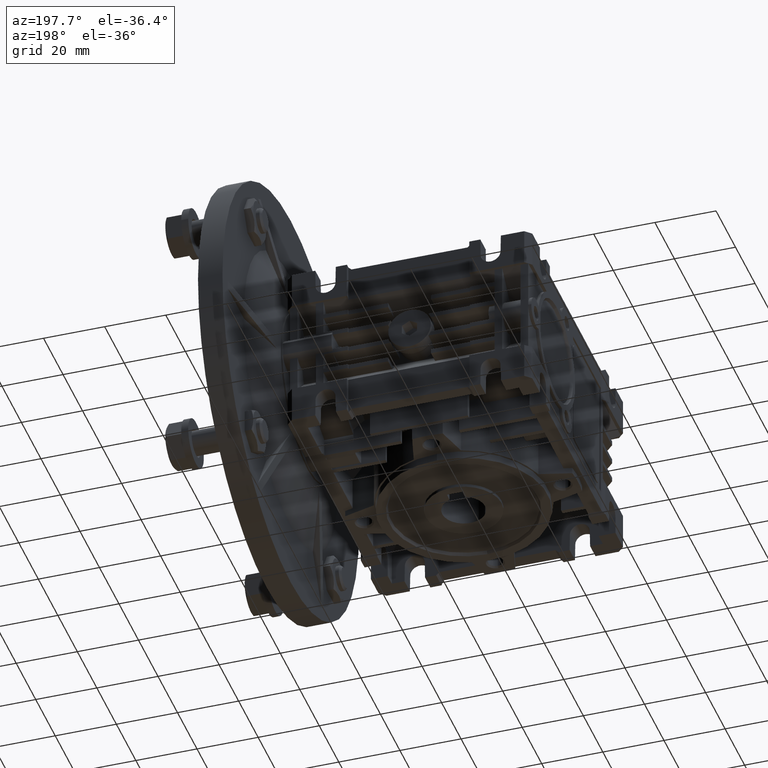
[diagram: clean part render]
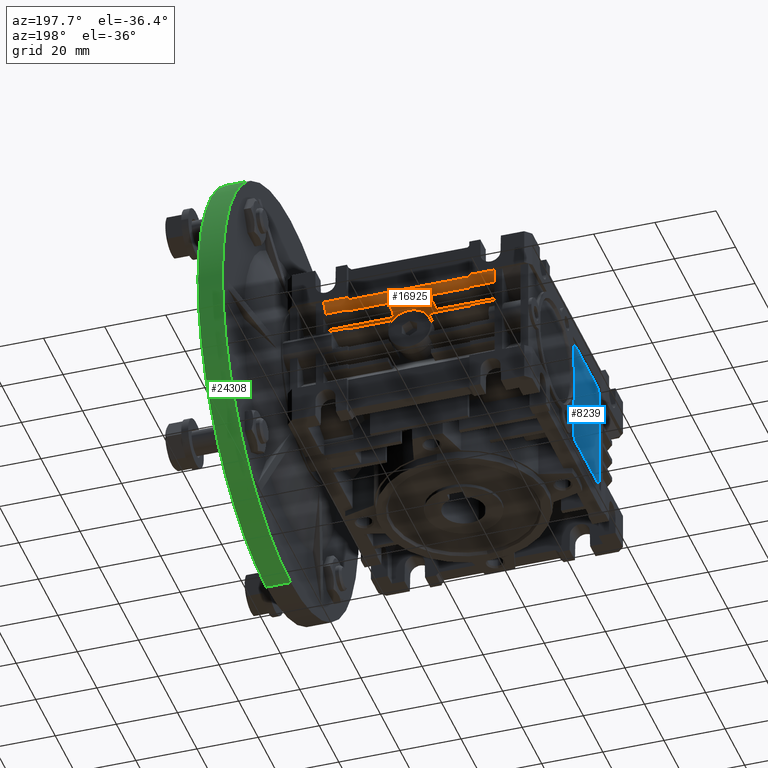
[diagram: same view with three faces highlighted in distinct colors, each labeled with its STEP entity id]
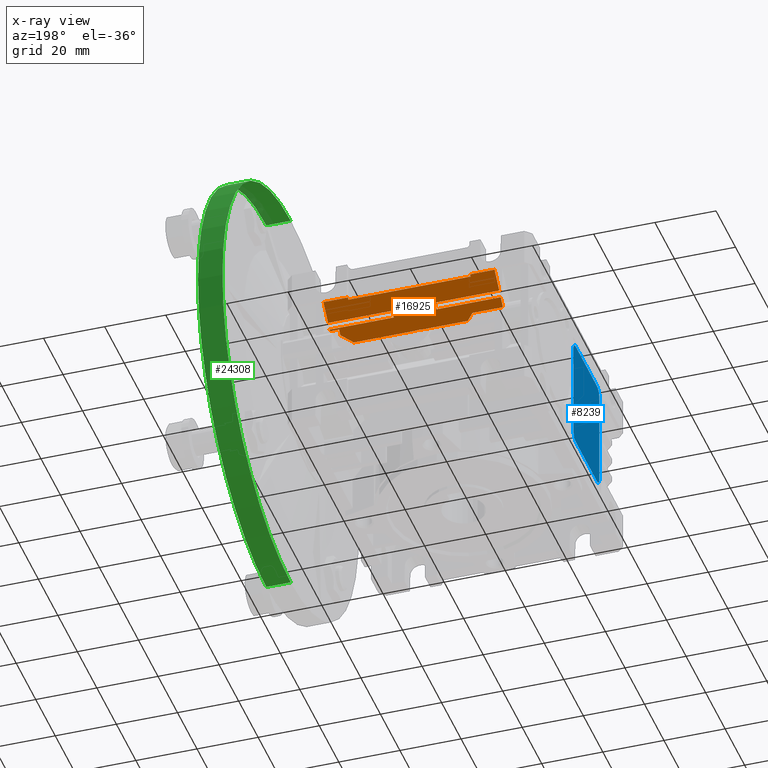
[diagram: x-ray of the same camera — body ghosted, the three highlighted faces saturated]
A machine part, auxiliary view with three faces highlighted in distinct colors.
The next image is the same camera in x-ray (body ghosted, the three faces saturated) — at least one of them is partly hidden behind the body in this view.
Their STEP definitions:

[orange] entity #16925 — the highlighted planar face has unit normal (0, -0.7071, 0.7071).
#39 = ORIENTED_EDGE ( 'NONE', *, *, #14391, .F. ) ;
#104 = CARTESIAN_POINT ( 'NONE',  ( -39.00000000000000000, 47.46996391333990317, 7.469963913339929817 ) ) ;
#209 = EDGE_CURVE ( 'NONE', #11871, #28544, #11088, .T. ) ;
#402 = VECTOR ( 'NONE', #22888, 1000.000000000000000 ) ;
#1157 = DIRECTION ( 'NONE',  ( 0.000000000000000000, 0.7071067811865480168, 0.7071067811865470176 ) ) ;
#1262 = EDGE_CURVE ( 'NONE', #28544, #24144, #30027, .T. ) ;
#1648 = CARTESIAN_POINT ( 'NONE',  ( 0.000000000000000000, 56.00000000000000000, 16.00000000000000000 ) ) ;
#2000 = CARTESIAN_POINT ( 'NONE',  ( -7.000000000000000000, 49.75000000000000000, 9.750000000000000000 ) ) ;
#2149 = EDGE_CURVE ( 'NONE', #30928, #23132, #22978, .T. ) ;
#2350 = ORIENTED_EDGE ( 'NONE', *, *, #1262, .F. ) ;
#2667 = VECTOR ( 'NONE', #6371, 1000.000000000000000 ) ;
#2937 = EDGE_CURVE ( 'NONE', #29669, #24183, #20636, .T. ) ;
#3090 = EDGE_CURVE ( 'NONE', #31614, #14803, #10053, .T. ) ;
#3310 = EDGE_CURVE ( 'NONE', #24183, #12698, #19015, .T. ) ;
#3506 = EDGE_CURVE ( 'NONE', #21051, #14185, #7147, .T. ) ;
#3522 = ORIENTED_EDGE ( 'NONE', *, *, #6237, .F. ) ;
#3692 = DIRECTION ( 'NONE',  ( 0.000000000000000000, 0.7071067811865480168, 0.7071067811865470176 ) ) ;
#3735 = VECTOR ( 'NONE', #7637, 1000.000000000000000 ) ;
#3982 = CARTESIAN_POINT ( 'NONE',  ( 7.000000000000000000, 51.25000000000000000, 11.25000000000000000 ) ) ;
#4085 = DIRECTION ( 'NONE',  ( 0.000000000000000000, 0.7071067811865474617, 0.7071067811865474617 ) ) ;
#4394 = VERTEX_POINT ( 'NONE', #28608 ) ;
#4639 = CARTESIAN_POINT ( 'NONE',  ( 28.00000000000000000, 56.00000000000000000, 16.00000000000000000 ) ) ;
#4919 = ORIENTED_EDGE ( 'NONE', *, *, #16233, .F. ) ;
#4937 = CARTESIAN_POINT ( 'NONE',  ( 22.51954799530127715, 46.64945855437098032, 6.649458554370993646 ) ) ;
#5625 = CARTESIAN_POINT ( 'NONE',  ( -17.99999999999998934, 47.46996391333991028, 7.469963913339932482 ) ) ;
#5695 = ORIENTED_EDGE ( 'NONE', *, *, #16977, .T. ) ;
#5720 = CARTESIAN_POINT ( 'NONE',  ( -28.00000000000000000, 47.46996391333990317, 7.469963913339929817 ) ) ;
#5935 = CARTESIAN_POINT ( 'NONE',  ( 21.28999999999997428, 45.93160555453771110, 5.931605554537727976 ) ) ;
#6237 = EDGE_CURVE ( 'NONE', #28973, #12698, #16117, .T. ) ;
#6278 = LINE ( 'NONE', #18777, #29329 ) ;
#6371 = DIRECTION ( 'NONE',  ( -1.000000000000000000, 0.000000000000000000, 0.000000000000000000 ) ) ;
#6549 = VECTOR ( 'NONE', #13691, 1000.000000000000000 ) ;
#6556 = CARTESIAN_POINT ( 'NONE',  ( -0.3025567477405109451, 45.99999999999998579, 6.000000000000001776 ) ) ;
#6689 = VECTOR ( 'NONE', #15392, 1000.000000000000000 ) ;
#6739 = VERTEX_POINT ( 'NONE', #10011 ) ;
#6777 = ORIENTED_EDGE ( 'NONE', *, *, #21748, .F. ) ;
#7147 = LINE ( 'NONE', #29851, #19126 ) ;
#7170 = VECTOR ( 'NONE', #4085, 1000.000000000000114 ) ;
#7533 = CARTESIAN_POINT ( 'NONE',  ( 23.75731417388607980, 47.36017117818274613, 7.360171178182755902 ) ) ;
#7635 = EDGE_CURVE ( 'NONE', #13912, #29905, #9746, .T. ) ;
#7637 = DIRECTION ( 'NONE',  ( 1.000000000000000000, 0.000000000000000000, 0.000000000000000000 ) ) ;
#7669 = CARTESIAN_POINT ( 'NONE',  ( 28.00000000000000000, 56.00000000000000000, 16.00000000000000000 ) ) ;
#7867 = CARTESIAN_POINT ( 'NONE',  ( 25.00000000000000000, 48.06660936176372445, 8.066609361763742214 ) ) ;
#7868 = ORIENTED_EDGE ( 'NONE', *, *, #19626, .F. ) ;
#7954 = VECTOR ( 'NONE', #14670, 1000.000000000000000 ) ;
#8417 = EDGE_CURVE ( 'NONE', #6739, #13912, #16035, .T. ) ;
#8458 = CARTESIAN_POINT ( 'NONE',  ( -28.00000000000000000, 49.75000000000000000, 9.750000000000000000 ) ) ;
#8628 = ORIENTED_EDGE ( 'NONE', *, *, #209, .F. ) ;
#8743 = VECTOR ( 'NONE', #31944, 1000.000000000000000 ) ;
#8777 = ORIENTED_EDGE ( 'NONE', *, *, #27083, .F. ) ;
#9535 = CARTESIAN_POINT ( 'NONE',  ( 20.00000000000000000, 56.00000000000000000, 16.00000000000000000 ) ) ;
#9546 = EDGE_CURVE ( 'NONE', #23712, #23428, #28208, .T. ) ;
#9746 = LINE ( 'NONE', #14474, #3735 ) ;
#10011 = CARTESIAN_POINT ( 'NONE',  ( 25.00000000000000000, 48.06660936176372445, 8.066609361763742214 ) ) ;
#10053 = LINE ( 'NONE', #32103, #8743 ) ;
#10521 = LINE ( 'NONE', #30481, #6689 ) ;
#10574 = CARTESIAN_POINT ( 'NONE',  ( -20.00000000000000000, 55.50000000000000000, 15.50000000000000000 ) ) ;
#10660 = ORIENTED_EDGE ( 'NONE', *, *, #30166, .F. ) ;
#10931 = LINE ( 'NONE', #20822, #6549 ) ;
#10981 = CARTESIAN_POINT ( 'NONE',  ( -7.000000000000000000, 56.00000000000000000, 16.00000000000000000 ) ) ;
#11088 = B_SPLINE_CURVE_WITH_KNOTS ( 'NONE', 3,
 ( #5625, #12947, #17957, #25740 ),
 .UNSPECIFIED., .F., .F.,
 ( 4, 4 ),
 ( 8.673617379884035472E-19, 0.002955180684863990132 ),
 .UNSPECIFIED. ) ;
#11271 = VECTOR ( 'NONE', #29071, 1000.000000000000000 ) ;
#11276 = VERTEX_POINT ( 'NONE', #19286 ) ;
#11797 = EDGE_CURVE ( 'NONE', #15636, #14568, #26046, .T. ) ;
#11871 = VERTEX_POINT ( 'NONE', #16314 ) ;
#12007 = ORIENTED_EDGE ( 'NONE', *, *, #9546, .F. ) ;
#12698 = VERTEX_POINT ( 'NONE', #9535 ) ;
#12778 = DIRECTION ( 'NONE',  ( 0.000000000000000000, -0.7071067811865480168, -0.7071067811865470176 ) ) ;
#12809 = LINE ( 'NONE', #104, #13452 ) ;
#12839 = VECTOR ( 'NONE', #12778, 1000.000000000000000 ) ;
#12947 = CARTESIAN_POINT ( 'NONE',  ( -17.32986343651985095, 46.95943337794270178, 6.959433377942715104 ) ) ;
#13110 = ORIENTED_EDGE ( 'NONE', *, *, #27116, .F. ) ;
#13452 = VECTOR ( 'NONE', #15055, 1000.000000000000000 ) ;
#13469 = CARTESIAN_POINT ( 'NONE',  ( -28.00000000000000000, 56.00000000000000000, 16.00000000000000000 ) ) ;
#13691 = DIRECTION ( 'NONE',  ( 0.000000000000000000, -0.7071067811865739960, -0.7071067811865210384 ) ) ;
#13879 = CARTESIAN_POINT ( 'NONE',  ( 0.000000000000000000, 45.99999999999998579, 6.000000000000000888 ) ) ;
#13912 = VERTEX_POINT ( 'NONE', #24177 ) ;
#14185 = VERTEX_POINT ( 'NONE', #3982 ) ;
#14391 = EDGE_CURVE ( 'NONE', #11276, #31614, #21450, .T. ) ;
#14474 = CARTESIAN_POINT ( 'NONE',  ( -39.00000000000000000, 49.35705401536119297, 9.357054015361219612 ) ) ;
#14566 = ORIENTED_EDGE ( 'NONE', *, *, #23391, .F. ) ;
#14568 = VERTEX_POINT ( 'NONE', #26142 ) ;
#14670 = DIRECTION ( 'NONE',  ( 1.000000000000000000, 0.000000000000000000, 0.000000000000000000 ) ) ;
#14803 = VERTEX_POINT ( 'NONE', #5935 ) ;
#14837 = ORIENTED_EDGE ( 'NONE', *, *, #28825, .F. ) ;
#15055 = DIRECTION ( 'NONE',  ( 1.000000000000000000, 0.000000000000000000, 0.000000000000000000 ) ) ;
#15107 = DIRECTION ( 'NONE',  ( 1.000000000000000000, 0.000000000000000000, 0.000000000000000000 ) ) ;
#15392 = DIRECTION ( 'NONE',  ( -1.000000000000000000, 0.000000000000000000, 0.000000000000000000 ) ) ;
#15405 = ORIENTED_EDGE ( 'NONE', *, *, #18727, .F. ) ;
#15437 = CARTESIAN_POINT ( 'NONE',  ( 0.3025567477405117778, 45.99999999999999289, 6.000000000000001776 ) ) ;
#15628 = CARTESIAN_POINT ( 'NONE',  ( -28.00000000000000000, 56.00000000000000000, 16.00000000000000000 ) ) ;
#15636 = VERTEX_POINT ( 'NONE', #25118 ) ;
#15715 = CARTESIAN_POINT ( 'NONE',  ( -39.00000000000000000, 56.00000000000000000, 16.00000000000000000 ) ) ;
#15785 = CARTESIAN_POINT ( 'NONE',  ( 7.000000000000000000, 56.00000000000000000, 16.00000000000000000 ) ) ;
#15987 = CARTESIAN_POINT ( 'NONE',  ( 7.000000000000000000, 49.75000000000000000, 9.750000000000000000 ) ) ;
#16035 = LINE ( 'NONE', #25930, #28674 ) ;
#16038 = FACE_OUTER_BOUND ( 'NONE', #31804, .T. ) ;
#16058 = B_SPLINE_CURVE_WITH_KNOTS ( 'NONE', 3,
 ( #19705, #4937, #7533, #7867 ),
 .UNSPECIFIED., .F., .F.,
 ( 4, 4 ),
 ( 1.430489624538199204E-17, 0.004783365187160523550 ),
 .UNSPECIFIED. ) ;
#16073 = ORIENTED_EDGE ( 'NONE', *, *, #2149, .F. ) ;
#16117 = LINE ( 'NONE', #1648, #2667 ) ;
#16233 = EDGE_CURVE ( 'NONE', #24144, #11276, #24745, .T. ) ;
#16314 = CARTESIAN_POINT ( 'NONE',  ( -17.99999999999998934, 47.46996391333991028, 7.469963913339932482 ) ) ;
#16545 = CARTESIAN_POINT ( 'NONE',  ( -28.00000000000000000, 56.00000000000000000, 16.00000000000000000 ) ) ;
#16602 = ORIENTED_EDGE ( 'NONE', *, *, #2937, .T. ) ;
#16776 = VECTOR ( 'NONE', #29311, 1000.000000000000000 ) ;
#16925 = ADVANCED_FACE ( 'NONE', ( #16038 ), #30643, .F. ) ;
#16977 = EDGE_CURVE ( 'NONE', #28973, #21051, #31749, .T. ) ;
#17061 = DIRECTION ( 'NONE',  ( -1.000000000000000000, 0.000000000000000000, 0.000000000000000000 ) ) ;
#17084 = CARTESIAN_POINT ( 'NONE',  ( -7.000000000000000000, 51.25000000000000000, 11.25000000000000000 ) ) ;
#17129 = CARTESIAN_POINT ( 'NONE',  ( -20.00000000000000000, 55.50000000000000000, 15.50000000000000000 ) ) ;
#17891 = LINE ( 'NONE', #15785, #30051 ) ;
#17957 = CARTESIAN_POINT ( 'NONE',  ( -16.66275208289628296, 46.44693632425067875, 6.446936324250690298 ) ) ;
#18146 = DIRECTION ( 'NONE',  ( -1.000000000000000000, 0.000000000000000000, 0.000000000000000000 ) ) ;
#18296 = DIRECTION ( 'NONE',  ( 0.000000000000000000, 0.7071067811865480168, 0.7071067811865470176 ) ) ;
#18327 = AXIS2_PLACEMENT_3D ( 'NONE', #15715, #30487, #18146 ) ;
#18470 = DIRECTION ( 'NONE',  ( 0.000000000000000000, -0.7071067811865480168, -0.7071067811865470176 ) ) ;
#18727 = EDGE_CURVE ( 'NONE', #14803, #6739, #16058, .T. ) ;
#18777 = CARTESIAN_POINT ( 'NONE',  ( -20.00000000000000000, 56.00000000000000000, 16.00000000000000000 ) ) ;
#19015 = LINE ( 'NONE', #26332, #7170 ) ;
#19126 = VECTOR ( 'NONE', #17061, 1000.000000000000000 ) ;
#19187 = ORIENTED_EDGE ( 'NONE', *, *, #11797, .T. ) ;
#19286 = CARTESIAN_POINT ( 'NONE',  ( 0.000000000000000000, 45.99999999999998579, 6.000000000000000888 ) ) ;
#19525 = CARTESIAN_POINT ( 'NONE',  ( -39.00000000000000000, 51.25000000000000000, 11.25000000000000000 ) ) ;
#19563 = CARTESIAN_POINT ( 'NONE',  ( 28.00000000000000000, 51.25000000000000000, 11.25000000000000000 ) ) ;
#19626 = EDGE_CURVE ( 'NONE', #29669, #20890, #6278, .T. ) ;
#19705 = CARTESIAN_POINT ( 'NONE',  ( 21.28999999999997428, 45.93160555453771110, 5.931605554537727976 ) ) ;
#20006 = LINE ( 'NONE', #19525, #7954 ) ;
#20636 = LINE ( 'NONE', #10574, #402 ) ;
#20793 = CARTESIAN_POINT ( 'NONE',  ( 0.000000000000000000, 45.99999999999998579, 6.000000000000000888 ) ) ;
#20822 = CARTESIAN_POINT ( 'NONE',  ( 28.00000000000000000, 49.75000000000000000, 9.750000000000000000 ) ) ;
#20890 = VERTEX_POINT ( 'NONE', #25813 ) ;
#21051 = VERTEX_POINT ( 'NONE', #19563 ) ;
#21450 =( BOUNDED_CURVE ( )  B_SPLINE_CURVE ( 3, ( #20793, #15437, #25334, #30193 ),
 .UNSPECIFIED., .F., .F. ) 
 B_SPLINE_CURVE_WITH_KNOTS ( ( 4, 4 ),
 ( 0.000000000000000000, 0.1511343561108894895 ),
 .UNSPECIFIED. ) 
 CURVE ( )  GEOMETRIC_REPRESENTATION_ITEM ( )  RATIONAL_B_SPLINE_CURVE ( ( 1.000000000000000000, 0.9980974394903445734, 0.9980974394903445734, 1.000000000000000000 ) ) 
 REPRESENTATION_ITEM ( '' )  );
#21454 = ORIENTED_EDGE ( 'NONE', *, *, #3090, .F. ) ;
#21748 = EDGE_CURVE ( 'NONE', #20890, #30615, #31186, .T. ) ;
#22170 = ORIENTED_EDGE ( 'NONE', *, *, #3506, .T. ) ;
#22254 = CARTESIAN_POINT ( 'NONE',  ( 0.9033579276108288925, 45.93160555453770399, 5.931605554537719982 ) ) ;
#22888 = DIRECTION ( 'NONE',  ( 1.000000000000000000, 0.000000000000000000, 0.000000000000000000 ) ) ;
#22978 = LINE ( 'NONE', #10981, #12839 ) ;
#23132 = VERTEX_POINT ( 'NONE', #2000 ) ;
#23391 = EDGE_CURVE ( 'NONE', #15636, #14185, #17891, .T. ) ;
#23428 = VERTEX_POINT ( 'NONE', #5720 ) ;
#23498 = CARTESIAN_POINT ( 'NONE',  ( 20.00000000000000000, 55.50000000000000000, 15.50000000000000000 ) ) ;
#23712 = VERTEX_POINT ( 'NONE', #8458 ) ;
#23772 = CARTESIAN_POINT ( 'NONE',  ( -15.99999999999999289, 45.93160555453771110, 5.931605554537727976 ) ) ;
#23879 = CARTESIAN_POINT ( 'NONE',  ( -39.00000000000000000, 56.00000000000000000, 16.00000000000000000 ) ) ;
#24092 = VECTOR ( 'NONE', #28798, 1000.000000000000000 ) ;
#24144 = VERTEX_POINT ( 'NONE', #25932 ) ;
#24177 = CARTESIAN_POINT ( 'NONE',  ( 25.00000000000000000, 49.35705401536119297, 9.357054015361230270 ) ) ;
#24183 = VERTEX_POINT ( 'NONE', #23498 ) ;
#24459 = VECTOR ( 'NONE', #28118, 1000.000000000000000 ) ;
#24522 = EDGE_CURVE ( 'NONE', #14568, #29905, #10931, .T. ) ;
#24745 =( BOUNDED_CURVE ( )  B_SPLINE_CURVE ( 3, ( #31072, #26042, #6556, #13879 ),
 .UNSPECIFIED., .F., .F. ) 
 B_SPLINE_CURVE_WITH_KNOTS ( ( 4, 4 ),
 ( 6.132050951068697131, 6.283185307179586232 ),
 .UNSPECIFIED. ) 
 CURVE ( )  GEOMETRIC_REPRESENTATION_ITEM ( )  RATIONAL_B_SPLINE_CURVE ( ( 1.000000000000000000, 0.9980974394903446845, 0.9980974394903446845, 1.000000000000000000 ) ) 
 REPRESENTATION_ITEM ( '' )  );
#24999 = CARTESIAN_POINT ( 'NONE',  ( -39.00000000000000000, 45.93160555453770399, 5.931605554537719982 ) ) ;
#25065 = VECTOR ( 'NONE', #18470, 1000.000000000000000 ) ;
#25118 = CARTESIAN_POINT ( 'NONE',  ( 7.000000000000000000, 49.75000000000000000, 9.750000000000000000 ) ) ;
#25334 = CARTESIAN_POINT ( 'NONE',  ( 0.6042500467007522191, 45.97715839397496040, 5.977158393974972839 ) ) ;
#25740 = CARTESIAN_POINT ( 'NONE',  ( -15.99999999999999289, 45.93160555453771110, 5.931605554537727976 ) ) ;
#25813 = CARTESIAN_POINT ( 'NONE',  ( -20.00000000000000000, 56.00000000000000000, 16.00000000000000000 ) ) ;
#25930 = CARTESIAN_POINT ( 'NONE',  ( 25.00000000000000000, 56.00000000000000000, 16.00000000000000000 ) ) ;
#25932 = CARTESIAN_POINT ( 'NONE',  ( -0.9033579276108288925, 45.93160555453770399, 5.931605554537719982 ) ) ;
#26042 = CARTESIAN_POINT ( 'NONE',  ( -0.6042500467007521081, 45.97715839397496040, 5.977158393974971062 ) ) ;
#26046 = LINE ( 'NONE', #15987, #24092 ) ;
#26142 = CARTESIAN_POINT ( 'NONE',  ( 28.00000000000000000, 49.75000000000000000, 9.750000000000000000 ) ) ;
#26332 = CARTESIAN_POINT ( 'NONE',  ( 20.00000000000000000, 55.50000000000000000, 15.50000000000000000 ) ) ;
#26883 = VECTOR ( 'NONE', #15107, 1000.000000000000000 ) ;
#26961 = ORIENTED_EDGE ( 'NONE', *, *, #24522, .T. ) ;
#27083 = EDGE_CURVE ( 'NONE', #23132, #23712, #10521, .T. ) ;
#27116 = EDGE_CURVE ( 'NONE', #23428, #11871, #12809, .T. ) ;
#27119 = ORIENTED_EDGE ( 'NONE', *, *, #8417, .F. ) ;
#28118 = DIRECTION ( 'NONE',  ( 0.000000000000000000, -0.7071067811865480168, -0.7071067811865470176 ) ) ;
#28208 = LINE ( 'NONE', #13469, #25065 ) ;
#28283 = LINE ( 'NONE', #15628, #24459 ) ;
#28453 = ORIENTED_EDGE ( 'NONE', *, *, #3310, .T. ) ;
#28544 = VERTEX_POINT ( 'NONE', #23772 ) ;
#28608 = CARTESIAN_POINT ( 'NONE',  ( -28.00000000000000000, 51.25000000000000000, 11.25000000000000000 ) ) ;
#28643 = CARTESIAN_POINT ( 'NONE',  ( 28.00000000000000000, 49.35705401536119297, 9.357054015361230270 ) ) ;
#28674 = VECTOR ( 'NONE', #3692, 1000.000000000000000 ) ;
#28798 = DIRECTION ( 'NONE',  ( 1.000000000000000000, 0.000000000000000000, 0.000000000000000000 ) ) ;
#28825 = EDGE_CURVE ( 'NONE', #30615, #4394, #28283, .T. ) ;
#28973 = VERTEX_POINT ( 'NONE', #7669 ) ;
#29071 = DIRECTION ( 'NONE',  ( -1.000000000000000000, 0.000000000000000000, 0.000000000000000000 ) ) ;
#29311 = DIRECTION ( 'NONE',  ( 5.164777824617680217E-16, -0.7071067811865470176, -0.7071067811865480168 ) ) ;
#29329 = VECTOR ( 'NONE', #18296, 1000.000000000000000 ) ;
#29669 = VERTEX_POINT ( 'NONE', #17129 ) ;
#29851 = CARTESIAN_POINT ( 'NONE',  ( 28.00000000000000000, 51.25000000000000000, 11.25000000000000000 ) ) ;
#29863 = ORIENTED_EDGE ( 'NONE', *, *, #7635, .F. ) ;
#29905 = VERTEX_POINT ( 'NONE', #28643 ) ;
#30027 = LINE ( 'NONE', #24999, #26883 ) ;
#30051 = VECTOR ( 'NONE', #1157, 1000.000000000000000 ) ;
#30166 = EDGE_CURVE ( 'NONE', #4394, #30928, #20006, .T. ) ;
#30193 = CARTESIAN_POINT ( 'NONE',  ( 0.9033579276108288925, 45.93160555453770399, 5.931605554537719982 ) ) ;
#30481 = CARTESIAN_POINT ( 'NONE',  ( -39.00000000000000000, 49.75000000000000000, 9.750000000000000000 ) ) ;
#30487 = DIRECTION ( 'NONE',  ( 0.000000000000000000, -0.7071067811865470176, 0.7071067811865480168 ) ) ;
#30615 = VERTEX_POINT ( 'NONE', #16545 ) ;
#30643 = PLANE ( 'NONE',  #18327 ) ;
#30928 = VERTEX_POINT ( 'NONE', #17084 ) ;
#31072 = CARTESIAN_POINT ( 'NONE',  ( -0.9033579276108288925, 45.93160555453770399, 5.931605554537719982 ) ) ;
#31186 = LINE ( 'NONE', #23879, #11271 ) ;
#31614 = VERTEX_POINT ( 'NONE', #22254 ) ;
#31749 = LINE ( 'NONE', #4639, #16776 ) ;
#31804 = EDGE_LOOP ( 'NONE', ( #21454, #39, #4919, #2350, #8628, #13110, #12007, #8777, #16073, #10660, #14837, #6777, #7868, #16602, #28453, #3522, #5695, #22170, #14566, #19187, #26961, #29863, #27119, #15405 ) ) ;
#31944 = DIRECTION ( 'NONE',  ( 1.000000000000000000, 0.000000000000000000, 0.000000000000000000 ) ) ;
#32103 = CARTESIAN_POINT ( 'NONE',  ( -39.00000000000000000, 45.93160555453770399, 5.931605554537719982 ) ) ;

[blue] entity #8239 — the highlighted planar face has unit normal (-1, 0, 0).
#433 = DIRECTION ( 'NONE',  ( 0.000000000000000000, 0.000000000000000000, 1.000000000000000000 ) ) ;
#615 = AXIS2_PLACEMENT_3D ( 'NONE', #10195, #30142, #433 ) ;
#807 = DIRECTION ( 'NONE',  ( 1.000000000000000000, 0.000000000000000000, 0.000000000000000000 ) ) ;
#1439 = EDGE_CURVE ( 'NONE', #23345, #12457, #17551, .T. ) ;
#2770 = ORIENTED_EDGE ( 'NONE', *, *, #5585, .F. ) ;
#2915 = DIRECTION ( 'NONE',  ( 0.000000000000000000, -1.000000000000000000, 0.000000000000000000 ) ) ;
#3583 = EDGE_CURVE ( 'NONE', #22701, #27640, #30001, .T. ) ;
#4167 = LINE ( 'NONE', #21069, #30978 ) ;
#5324 = LINE ( 'NONE', #25128, #24937 ) ;
#5585 = EDGE_CURVE ( 'NONE', #27640, #25587, #28054, .T. ) ;
#5825 = EDGE_LOOP ( 'NONE', ( #7169, #7852, #26189, #2770, #22132, #22410, #16147, #25301 ) ) ;
#6003 = CARTESIAN_POINT ( 'NONE',  ( -38.80000000000000426, -17.50000000000000000, -16.00000000000000000 ) ) ;
#6141 = DIRECTION ( 'NONE',  ( 0.000000000000000000, -1.000000000000000000, 0.000000000000000000 ) ) ;
#6436 = EDGE_CURVE ( 'NONE', #25587, #10027, #15133, .T. ) ;
#7169 = ORIENTED_EDGE ( 'NONE', *, *, #1439, .F. ) ;
#7262 = CARTESIAN_POINT ( 'NONE',  ( -38.80000000000000426, 6.500000000000000000, -18.50000000000000000 ) ) ;
#7395 = AXIS2_PLACEMENT_3D ( 'NONE', #23936, #16955, #9034 ) ;
#7852 = ORIENTED_EDGE ( 'NONE', *, *, #24202, .F. ) ;
#7897 = VERTEX_POINT ( 'NONE', #6003 ) ;
#7930 = PLANE ( 'NONE',  #615 ) ;
#8134 = DIRECTION ( 'NONE',  ( 1.000000000000000000, 0.000000000000000000, 0.000000000000000000 ) ) ;
#8239 = ADVANCED_FACE ( 'NONE', ( #27384 ), #7930, .T. ) ;
#8264 = CARTESIAN_POINT ( 'NONE',  ( -38.80000000000000426, -17.50000000000000000, 16.00000000000000000 ) ) ;
#8851 = CARTESIAN_POINT ( 'NONE',  ( -38.80000000000000426, 9.000000000000000000, -16.00000000000000000 ) ) ;
#9034 = DIRECTION ( 'NONE',  ( 0.000000000000000000, -1.000000000000000000, 0.000000000000000000 ) ) ;
#10027 = VERTEX_POINT ( 'NONE', #22346 ) ;
#10195 = CARTESIAN_POINT ( 'NONE',  ( -38.80000000000000426, 0.000000000000000000, 0.000000000000000000 ) ) ;
#11890 = VECTOR ( 'NONE', #31781, 1000.000000000000000 ) ;
#12457 = VERTEX_POINT ( 'NONE', #8264 ) ;
#12773 = CARTESIAN_POINT ( 'NONE',  ( -38.80000000000000426, 6.500000000000000000, -18.50000000000000000 ) ) ;
#14892 = EDGE_CURVE ( 'NONE', #7897, #18802, #17237, .T. ) ;
#15133 = CIRCLE ( 'NONE', #24463, 2.499999999999999556 ) ;
#15740 = CARTESIAN_POINT ( 'NONE',  ( -38.80000000000000426, 9.000000000000000000, 16.00000000000000000 ) ) ;
#16147 = ORIENTED_EDGE ( 'NONE', *, *, #14892, .F. ) ;
#16519 = DIRECTION ( 'NONE',  ( 0.000000000000000000, -1.000000000000000000, 0.000000000000000000 ) ) ;
#16955 = DIRECTION ( 'NONE',  ( 1.000000000000000000, 0.000000000000000000, 0.000000000000000000 ) ) ;
#17237 = CIRCLE ( 'NONE', #7395, 2.499999999999998668 ) ;
#17551 = CIRCLE ( 'NONE', #32059, 2.499999999999998668 ) ;
#17992 = DIRECTION ( 'NONE',  ( 0.000000000000000000, 0.000000000000000000, -1.000000000000000000 ) ) ;
#18473 = CARTESIAN_POINT ( 'NONE',  ( -38.80000000000000426, 6.500000000000000000, 16.00000000000000000 ) ) ;
#18802 = VERTEX_POINT ( 'NONE', #29924 ) ;
#19150 = DIRECTION ( 'NONE',  ( 0.000000000000000000, -1.000000000000000000, 0.000000000000000000 ) ) ;
#20461 = CARTESIAN_POINT ( 'NONE',  ( -38.80000000000000426, 6.500000000000000000, -16.00000000000000000 ) ) ;
#20497 = CARTESIAN_POINT ( 'NONE',  ( -38.80000000000000426, -15.00000000000000000, 18.50000000000000000 ) ) ;
#21069 = CARTESIAN_POINT ( 'NONE',  ( -38.80000000000000426, -15.00000000000000000, 18.50000000000000000 ) ) ;
#22132 = ORIENTED_EDGE ( 'NONE', *, *, #3583, .F. ) ;
#22346 = CARTESIAN_POINT ( 'NONE',  ( -38.80000000000000426, 6.500000000000000000, 18.50000000000000000 ) ) ;
#22410 = ORIENTED_EDGE ( 'NONE', *, *, #26936, .F. ) ;
#22701 = VERTEX_POINT ( 'NONE', #12773 ) ;
#23341 = DIRECTION ( 'NONE',  ( 1.000000000000000000, 0.000000000000000000, 0.000000000000000000 ) ) ;
#23345 = VERTEX_POINT ( 'NONE', #20497 ) ;
#23936 = CARTESIAN_POINT ( 'NONE',  ( -38.80000000000000426, -15.00000000000000000, -16.00000000000000000 ) ) ;
#24202 = EDGE_CURVE ( 'NONE', #10027, #23345, #4167, .T. ) ;
#24463 = AXIS2_PLACEMENT_3D ( 'NONE', #18473, #23341, #6141 ) ;
#24937 = VECTOR ( 'NONE', #17992, 1000.000000000000000 ) ;
#25128 = CARTESIAN_POINT ( 'NONE',  ( -38.80000000000000426, -17.50000000000000000, -16.00000000000000000 ) ) ;
#25301 = ORIENTED_EDGE ( 'NONE', *, *, #28239, .F. ) ;
#25587 = VERTEX_POINT ( 'NONE', #15740 ) ;
#26189 = ORIENTED_EDGE ( 'NONE', *, *, #6436, .F. ) ;
#26381 = AXIS2_PLACEMENT_3D ( 'NONE', #20461, #807, #2915 ) ;
#26484 = VECTOR ( 'NONE', #27893, 1000.000000000000000 ) ;
#26753 = LINE ( 'NONE', #7262, #11890 ) ;
#26936 = EDGE_CURVE ( 'NONE', #18802, #22701, #26753, .T. ) ;
#27384 = FACE_OUTER_BOUND ( 'NONE', #5825, .T. ) ;
#27640 = VERTEX_POINT ( 'NONE', #8851 ) ;
#27893 = DIRECTION ( 'NONE',  ( 0.000000000000000000, 0.000000000000000000, 1.000000000000000000 ) ) ;
#28054 = LINE ( 'NONE', #30164, #26484 ) ;
#28239 = EDGE_CURVE ( 'NONE', #12457, #7897, #5324, .T. ) ;
#29924 = CARTESIAN_POINT ( 'NONE',  ( -38.80000000000000426, -15.00000000000000000, -18.50000000000000000 ) ) ;
#30001 = CIRCLE ( 'NONE', #26381, 2.499999999999999556 ) ;
#30142 = DIRECTION ( 'NONE',  ( -1.000000000000000000, 0.000000000000000000, 0.000000000000000000 ) ) ;
#30164 = CARTESIAN_POINT ( 'NONE',  ( -38.80000000000000426, 9.000000000000000000, 16.00000000000000000 ) ) ;
#30359 = CARTESIAN_POINT ( 'NONE',  ( -38.80000000000000426, -15.00000000000000000, 16.00000000000000000 ) ) ;
#30978 = VECTOR ( 'NONE', #16519, 1000.000000000000000 ) ;
#31781 = DIRECTION ( 'NONE',  ( 0.000000000000000000, 1.000000000000000000, 0.000000000000000000 ) ) ;
#32059 = AXIS2_PLACEMENT_3D ( 'NONE', #30359, #8134, #19150 ) ;

[green] entity #24308 — the highlighted cylindrical surface (partial cylindrical patch) has radius 70 mm, axis along (-1, 0, 0).
#3561 = CARTESIAN_POINT ( 'NONE',  ( 55.00000000000000711, 30.00000000000000000, 70.00000000000000000 ) ) ;
#3702 = ORIENTED_EDGE ( 'NONE', *, *, #9317, .T. ) ;
#4909 = CARTESIAN_POINT ( 'NONE',  ( 47.00000000000000000, 30.00000000000000711, -70.00000000000000000 ) ) ;
#5457 = VERTEX_POINT ( 'NONE', #29016 ) ;
#5563 = DIRECTION ( 'NONE',  ( -1.000000000000000000, 0.000000000000000000, 0.000000000000000000 ) ) ;
#5885 = CIRCLE ( 'NONE', #18846, 70.00000000000000000 ) ;
#7440 = DIRECTION ( 'NONE',  ( 0.000000000000000000, 0.000000000000000000, 1.000000000000000000 ) ) ;
#7508 = FACE_OUTER_BOUND ( 'NONE', #31252, .T. ) ;
#8261 = LINE ( 'NONE', #30963, #30219 ) ;
#9317 = EDGE_CURVE ( 'NONE', #10252, #27187, #5885, .T. ) ;
#9804 = CARTESIAN_POINT ( 'NONE',  ( 55.00000000000000711, 30.00000000000000000, 0.000000000000000000 ) ) ;
#9922 = ORIENTED_EDGE ( 'NONE', *, *, #15336, .F. ) ;
#10006 = CIRCLE ( 'NONE', #14171, 70.00000000000000000 ) ;
#10252 = VERTEX_POINT ( 'NONE', #4909 ) ;
#10358 = ORIENTED_EDGE ( 'NONE', *, *, #15002, .T. ) ;
#11178 = DIRECTION ( 'NONE',  ( -1.000000000000000000, 0.000000000000000000, 0.000000000000000000 ) ) ;
#12248 = DIRECTION ( 'NONE',  ( -1.000000000000000000, 0.000000000000000000, 0.000000000000000000 ) ) ;
#12893 = DIRECTION ( 'NONE',  ( 0.000000000000000000, 0.000000000000000000, 1.000000000000000000 ) ) ;
#14171 = AXIS2_PLACEMENT_3D ( 'NONE', #9804, #12248, #22124 ) ;
#15002 = EDGE_CURVE ( 'NONE', #5457, #29980, #10006, .T. ) ;
#15266 = CARTESIAN_POINT ( 'NONE',  ( 55.00000000000000711, 30.00000000000000711, -70.00000000000000000 ) ) ;
#15336 = EDGE_CURVE ( 'NONE', #5457, #27187, #25475, .T. ) ;
#15469 = CYLINDRICAL_SURFACE ( 'NONE', #31477, 70.00000000000000000 ) ;
#16232 = DIRECTION ( 'NONE',  ( -1.000000000000000000, 0.000000000000000000, 0.000000000000000000 ) ) ;
#16865 = EDGE_CURVE ( 'NONE', #29980, #10252, #8261, .T. ) ;
#17346 = DIRECTION ( 'NONE',  ( 1.000000000000000000, 0.000000000000000000, 0.000000000000000000 ) ) ;
#18846 = AXIS2_PLACEMENT_3D ( 'NONE', #29667, #17346, #7440 ) ;
#19266 = VECTOR ( 'NONE', #16232, 1000.000000000000000 ) ;
#22124 = DIRECTION ( 'NONE',  ( 0.000000000000000000, 0.000000000000000000, 1.000000000000000000 ) ) ;
#24308 = ADVANCED_FACE ( 'NONE', ( #7508 ), #15469, .T. ) ;
#25475 = LINE ( 'NONE', #3561, #19266 ) ;
#26091 = CARTESIAN_POINT ( 'NONE',  ( 47.00000000000000000, 30.00000000000000000, 70.00000000000000000 ) ) ;
#27187 = VERTEX_POINT ( 'NONE', #26091 ) ;
#27301 = CARTESIAN_POINT ( 'NONE',  ( 55.00000000000000711, 30.00000000000000000, 0.000000000000000000 ) ) ;
#29016 = CARTESIAN_POINT ( 'NONE',  ( 55.00000000000000711, 30.00000000000000000, 70.00000000000000000 ) ) ;
#29667 = CARTESIAN_POINT ( 'NONE',  ( 47.00000000000000000, 30.00000000000000000, 0.000000000000000000 ) ) ;
#29980 = VERTEX_POINT ( 'NONE', #15266 ) ;
#30208 = ORIENTED_EDGE ( 'NONE', *, *, #16865, .T. ) ;
#30219 = VECTOR ( 'NONE', #11178, 1000.000000000000000 ) ;
#30963 = CARTESIAN_POINT ( 'NONE',  ( 55.00000000000000711, 30.00000000000000711, -70.00000000000000000 ) ) ;
#31252 = EDGE_LOOP ( 'NONE', ( #10358, #30208, #3702, #9922 ) ) ;
#31477 = AXIS2_PLACEMENT_3D ( 'NONE', #27301, #5563, #12893 ) ;